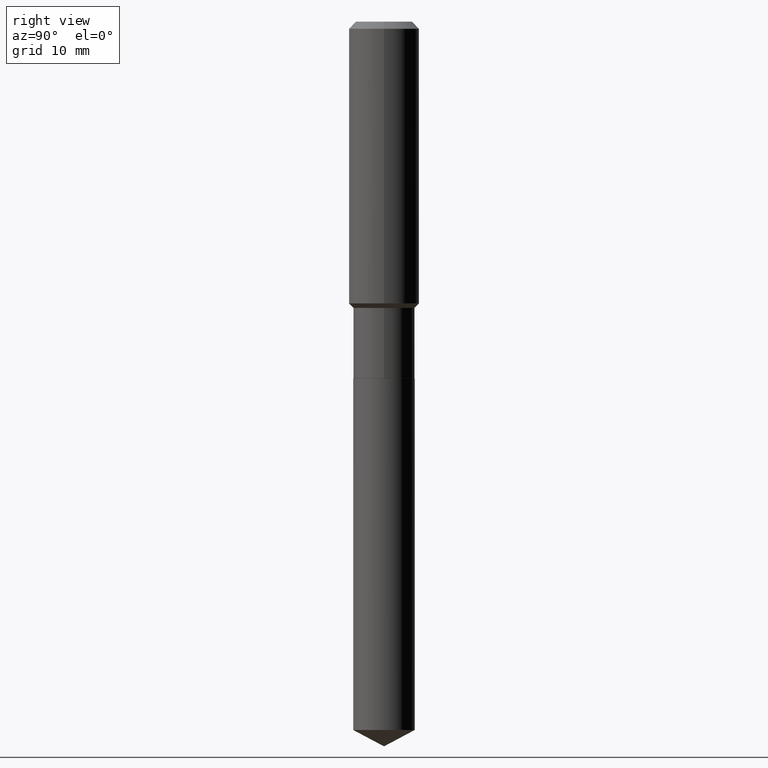
[diagram: clean part render]
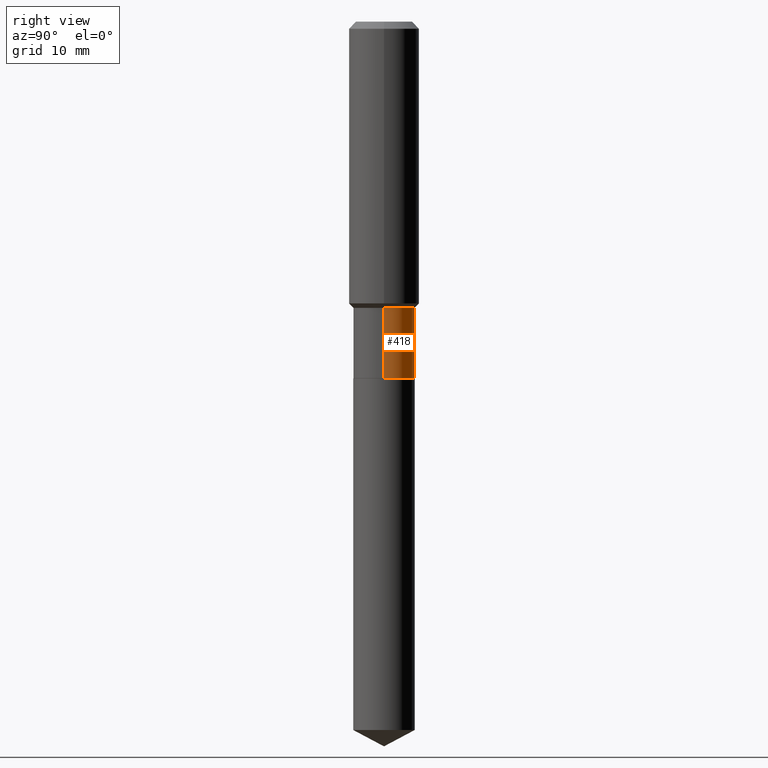
[diagram: same view with one face highlighted and labeled with its STEP entity id]
A machine part, right view. The second image highlights one B-rep face of the part: STEP entity #418.
In plain terms, the highlighted cylindrical surface (edge-blend (fillet) strip) has radius 4.3663 mm, axis along (-0, 0, 1).
Its self-contained STEP definition (entity closure, byte-faithful):
#14 = EDGE_CURVE ( 'NONE', #140, #437, #72, .T. ) ;
#61 = CIRCLE ( 'NONE', #161, 0.1718999999999999695 ) ;
#68 = ORIENTED_EDGE ( 'NONE', *, *, #346, .F. ) ;
#72 = CIRCLE ( 'NONE', #218, 0.1718999999999999417 ) ;
#74 = ORIENTED_EDGE ( 'NONE', *, *, #115, .T. ) ;
#85 = CARTESIAN_POINT ( 'NONE',  ( 0.1718999999999999695, -8.170415481026838913E-15, -1.996299999999999741 ) ) ;
#91 = VECTOR ( 'NONE', #141, 39.37007874015748143 ) ;
#112 = DIRECTION ( 'NONE',  ( -2.445468806185136597E-29, 3.491481338843145583E-15, 1.000000000000000000 ) ) ;
#115 = EDGE_CURVE ( 'NONE', #328, #437, #395, .T. ) ;
#124 = AXIS2_PLACEMENT_3D ( 'NONE', #156, #199, #343 ) ;
#140 = VERTEX_POINT ( 'NONE', #427 ) ;
#141 = DIRECTION ( 'NONE',  ( -2.445468806185136877E-29, 3.491481338843145188E-15, 1.000000000000000000 ) ) ;
#156 = CARTESIAN_POINT ( 'NONE',  ( 0.000000000000000000, 0.000000000000000000, 0.000000000000000000 ) ) ;
#161 = AXIS2_PLACEMENT_3D ( 'NONE', #291, #357, #390 ) ;
#174 = EDGE_LOOP ( 'NONE', ( #225, #74, #387, #68 ) ) ;
#194 = FACE_OUTER_BOUND ( 'NONE', #174, .T. ) ;
#199 = DIRECTION ( 'NONE',  ( -2.445468806185136597E-29, 3.491481338843145583E-15, 1.000000000000000000 ) ) ;
#218 = AXIS2_PLACEMENT_3D ( 'NONE', #398, #112, #260 ) ;
#225 = ORIENTED_EDGE ( 'NONE', *, *, #238, .T. ) ;
#238 = EDGE_CURVE ( 'NONE', #337, #328, #61, .T. ) ;
#239 = VECTOR ( 'NONE', #416, 39.37007874015748143 ) ;
#251 = CARTESIAN_POINT ( 'NONE',  ( -0.1718999999999999417, 1.221422962771611806E-15, -8.455649420148180377E-30 ) ) ;
#260 = DIRECTION ( 'NONE',  ( 1.000000000000000000, -6.982962677686269077E-15, 0.000000000000000000 ) ) ;
#268 = CARTESIAN_POINT ( 'NONE',  ( 0.1718999999999999417, -1.200371284294268847E-15, 8.382147877593211677E-30 ) ) ;
#291 = CARTESIAN_POINT ( 'NONE',  ( 4.881889377787387135E-29, -6.970044196732570461E-15, -1.996299999999999741 ) ) ;
#328 = VERTEX_POINT ( 'NONE', #379 ) ;
#337 = VERTEX_POINT ( 'NONE', #85 ) ;
#338 = CYLINDRICAL_SURFACE ( 'NONE', #124, 0.1718999999999999417 ) ;
#343 = DIRECTION ( 'NONE',  ( 1.000000000000000000, -6.982962677686266711E-15, 4.876176775795936353E-29 ) ) ;
#346 = EDGE_CURVE ( 'NONE', #337, #140, #381, .T. ) ;
#357 = DIRECTION ( 'NONE',  ( -2.445468806185136597E-29, 3.491481338843145583E-15, 1.000000000000000000 ) ) ;
#379 = CARTESIAN_POINT ( 'NONE',  ( -0.1718999999999999695, -5.059228243606378892E-15, -1.996299999999999741 ) ) ;
#381 = LINE ( 'NONE', #268, #239 ) ;
#387 = ORIENTED_EDGE ( 'NONE', *, *, #14, .F. ) ;
#390 = DIRECTION ( 'NONE',  ( 1.000000000000000000, -6.982962677686268288E-15, 0.000000000000000000 ) ) ;
#395 = LINE ( 'NONE', #251, #91 ) ;
#398 = CARTESIAN_POINT ( 'NONE',  ( 3.916173746224877726E-29, -5.591258216023413300E-15, -1.601399999999999935 ) ) ;
#416 = DIRECTION ( 'NONE',  ( -2.445468806185136877E-29, 3.491481338843145188E-15, 1.000000000000000000 ) ) ;
#418 = ADVANCED_FACE ( 'NONE', ( #194 ), #338, .T. ) ;
#427 = CARTESIAN_POINT ( 'NONE',  ( 0.1718999999999999417, -6.791629500317682541E-15, -1.601399999999999935 ) ) ;
#437 = VERTEX_POINT ( 'NONE', #463 ) ;
#463 = CARTESIAN_POINT ( 'NONE',  ( -0.1718999999999999417, -5.059228243606380469E-15, -1.601399999999999935 ) ) ;